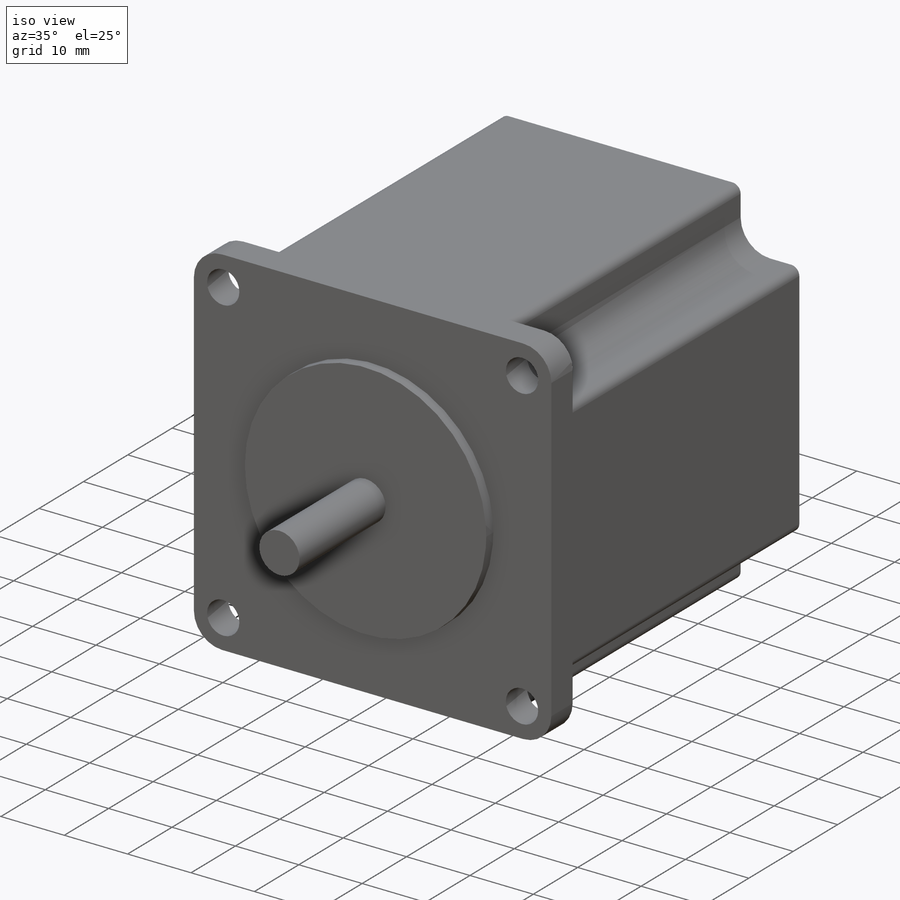
[diagram: iso view]
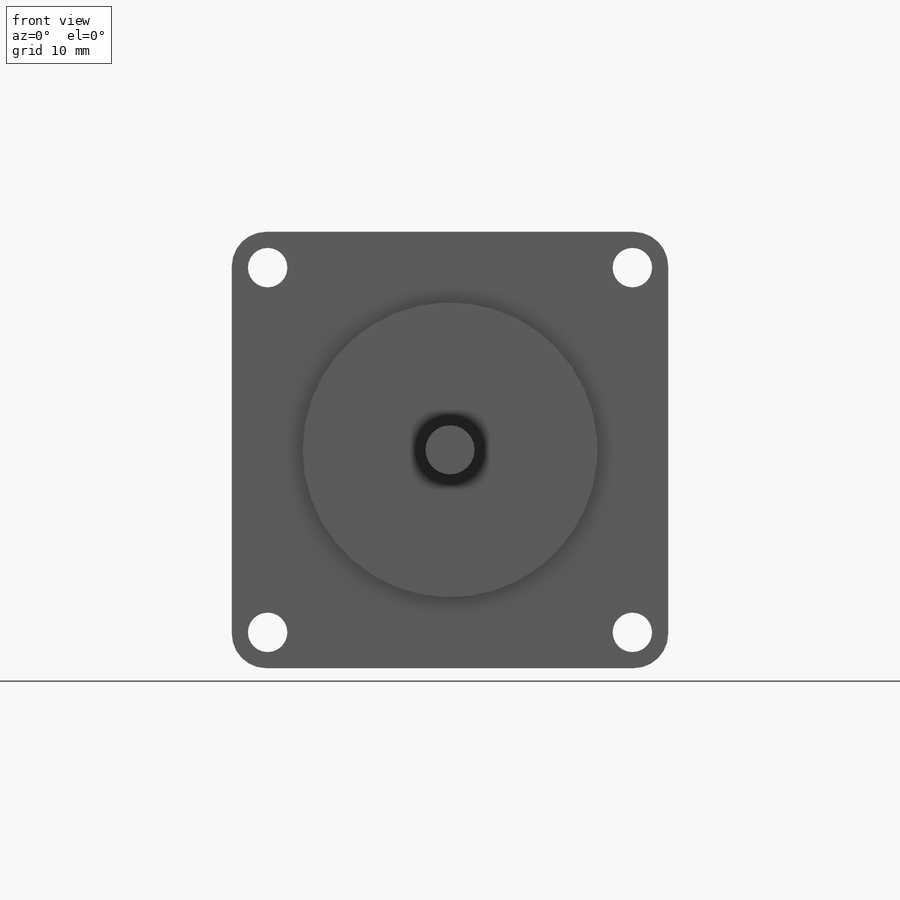
[diagram: front view]
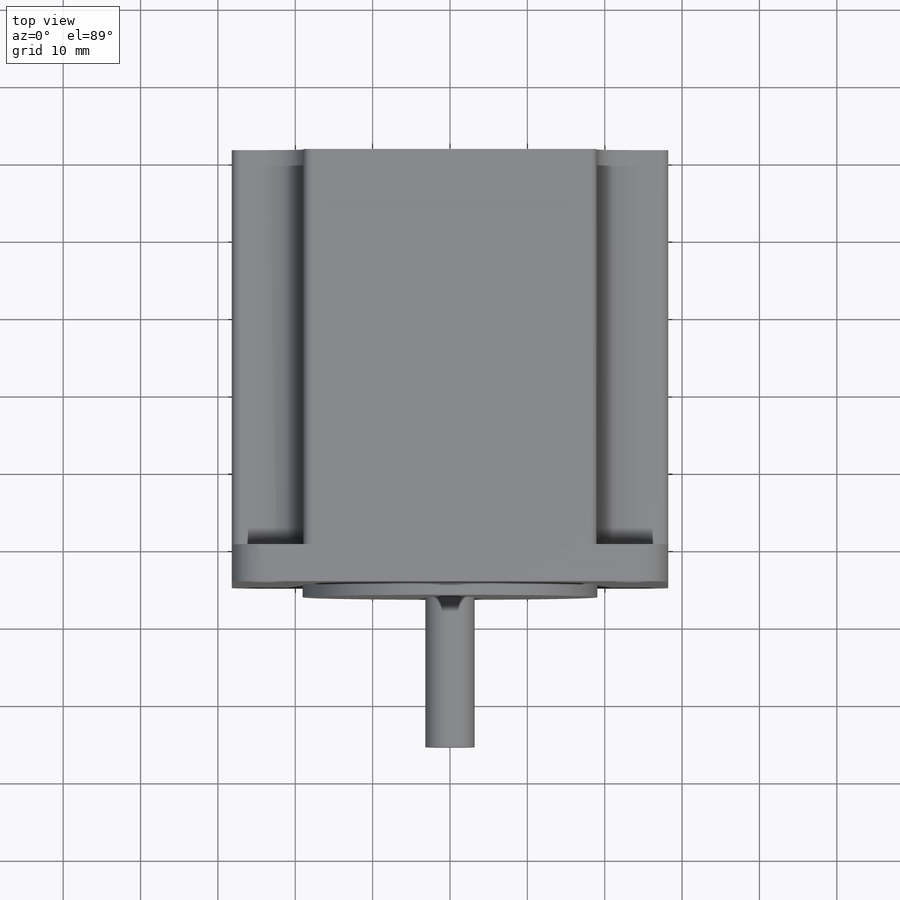
[diagram: top view]
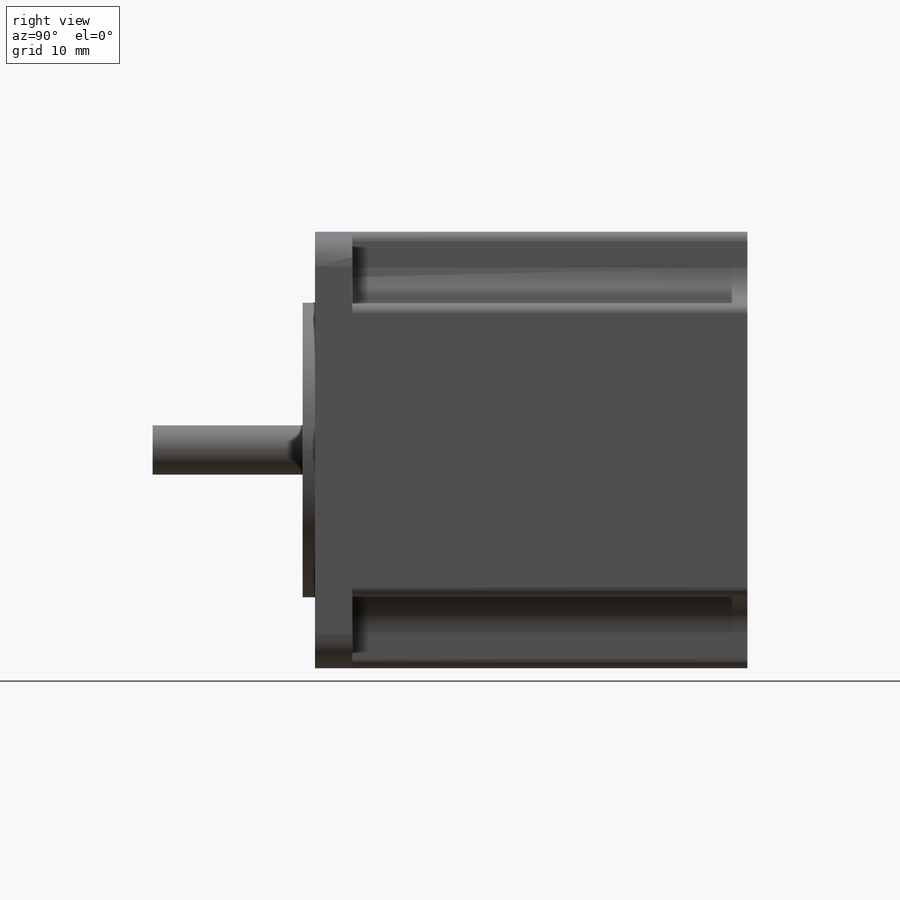
[diagram: right view]
SOLIDWORKS PART (.sldprt)
format: sldprt  version: not decoded by parser v0  size: 282,624 bytes
history: native  units: mm
features: sketch x5, extrude x4, material x1 (+13 scaffold rows collapsed)
feature tree (23):
  scaffold x13  (default folders/planes/origin — collapsed)
  material  "Material <not specified>"
  sketch  "Sketch1"  dims[D3=5.1mm D4=5.1mm D5=5.1mm D6=5.1mm D9=4.445mm D1=56.4mm D2=56.4mm D7=47.14mm D8=47.14mm]
  extrude  "Boss-Extrude1"  Depth=4.8mm
  sketch  "Sketch2"  dims[D1=1.27mm]
  extrude  "Boss-Extrude2"  Depth=55.88mm
  sketch  "Sketch3"  dims[D1=38.1mm]
  extrude  "Boss-Extrude3"  Depth=1.6mm
  sketch  "Sketch4"  dims[D1=6.35mm]
  extrude  "Boss-Extrude8"  Depth=19.4mm
  sketch  "Mounting Holes"  dims[D1=0.0mm]
decode coverage: 9 of 9 modeling features carry decoded parameters
note: suppression state not decoded; provenance and decode notes live in map.json
